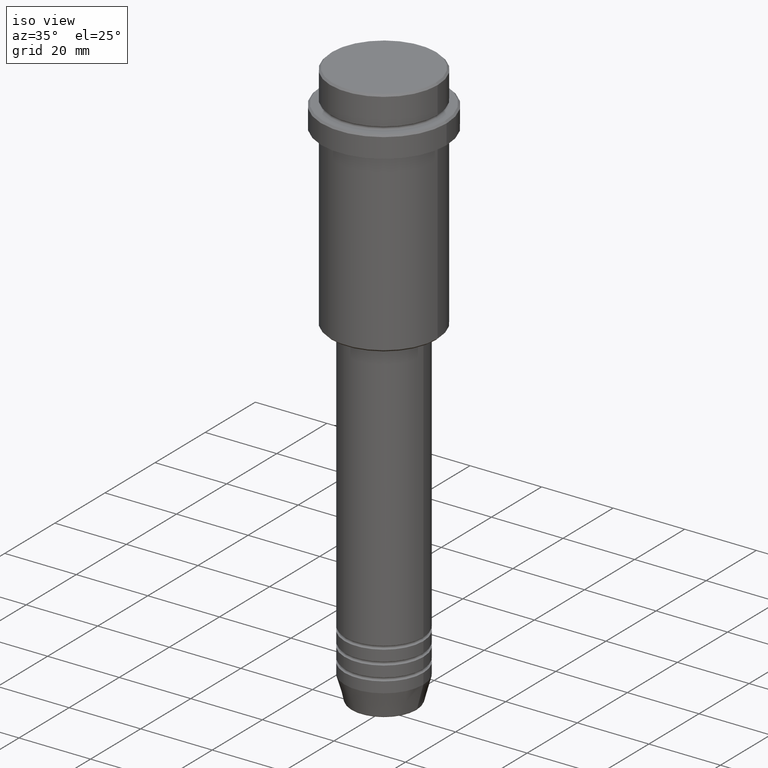
[diagram: clean part render]
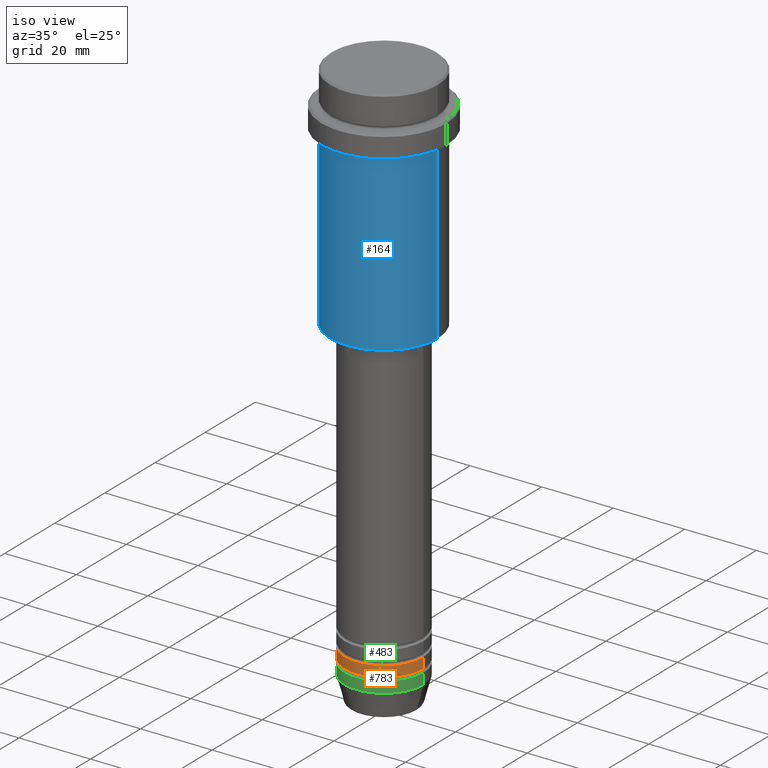
[diagram: same view with three faces highlighted in distinct colors, each labeled with its STEP entity id]
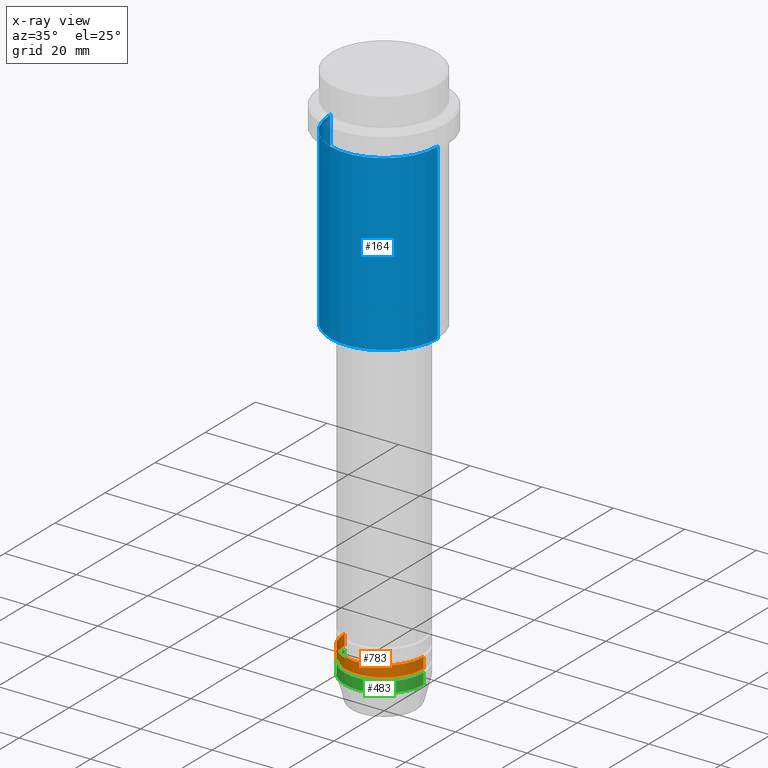
[diagram: x-ray of the same camera — body ghosted, the three highlighted faces saturated]
A machine part, iso view with three faces highlighted in distinct colors.
The next image is the same camera in x-ray (body ghosted, the three faces saturated) — at least one of them is partly hidden behind the body in this view.
Their STEP definitions:

[orange] entity #783 — the highlighted cylindrical surface (partial cylindrical patch) has radius 11 mm, axis along (-0, -0, 1).
#11 = VECTOR ( 'NONE', #760, 1000.000000000000000 ) ;
#33 = AXIS2_PLACEMENT_3D ( 'NONE', #1032, #47, #489 ) ;
#47 = DIRECTION ( 'NONE',  ( -0.000000000000000000, -0.000000000000000000, 1.000000000000000000 ) ) ;
#73 = LINE ( 'NONE', #871, #11 ) ;
#116 = DIRECTION ( 'NONE',  ( -0.000000000000000000, -0.000000000000000000, 1.000000000000000000 ) ) ;
#147 = CARTESIAN_POINT ( 'NONE',  ( -11.00000000000000000, 1.347111479062088405E-15, -148.9999999999999147 ) ) ;
#166 = ORIENTED_EDGE ( 'NONE', *, *, #510, .F. ) ;
#197 = ORIENTED_EDGE ( 'NONE', *, *, #433, .T. ) ;
#233 = DIRECTION ( 'NONE',  ( -0.000000000000000000, -0.000000000000000000, 1.000000000000000000 ) ) ;
#287 = ORIENTED_EDGE ( 'NONE', *, *, #1113, .T. ) ;
#289 = CIRCLE ( 'NONE', #768, 11.00000000000000000 ) ;
#401 = VERTEX_POINT ( 'NONE', #1377 ) ;
#433 = EDGE_CURVE ( 'NONE', #688, #401, #463, .T. ) ;
#463 = LINE ( 'NONE', #896, #721 ) ;
#489 = DIRECTION ( 'NONE',  ( 1.000000000000000000, 0.000000000000000000, 0.000000000000000000 ) ) ;
#510 = EDGE_CURVE ( 'NONE', #1330, #401, #289, .T. ) ;
#521 = AXIS2_PLACEMENT_3D ( 'NONE', #568, #233, #895 ) ;
#568 = CARTESIAN_POINT ( 'NONE',  ( 0.000000000000000000, 0.000000000000000000, -148.9999999999999147 ) ) ;
#579 = DIRECTION ( 'NONE',  ( -0.000000000000000000, -0.000000000000000000, 1.000000000000000000 ) ) ;
#588 = CYLINDRICAL_SURFACE ( 'NONE', #33, 11.00000000000000000 ) ;
#644 = EDGE_CURVE ( 'NONE', #1136, #1330, #73, .T. ) ;
#688 = VERTEX_POINT ( 'NONE', #1016 ) ;
#721 = VECTOR ( 'NONE', #116, 1000.000000000000000 ) ;
#760 = DIRECTION ( 'NONE',  ( -0.000000000000000000, -0.000000000000000000, 1.000000000000000000 ) ) ;
#768 = AXIS2_PLACEMENT_3D ( 'NONE', #1331, #579, #996 ) ;
#783 = ADVANCED_FACE ( 'NONE', ( #915 ), #588, .T. ) ;
#871 = CARTESIAN_POINT ( 'NONE',  ( -11.00000000000000000, 1.347111479062088405E-15, 0.000000000000000000 ) ) ;
#895 = DIRECTION ( 'NONE',  ( 1.000000000000000000, 0.000000000000000000, 0.000000000000000000 ) ) ;
#896 = CARTESIAN_POINT ( 'NONE',  ( 11.00000000000000000, 0.000000000000000000, 0.000000000000000000 ) ) ;
#915 = FACE_OUTER_BOUND ( 'NONE', #1351, .T. ) ;
#996 = DIRECTION ( 'NONE',  ( 1.000000000000000000, 0.000000000000000000, 0.000000000000000000 ) ) ;
#1016 = CARTESIAN_POINT ( 'NONE',  ( 11.00000000000000000, 0.000000000000000000, -148.9999999999999147 ) ) ;
#1032 = CARTESIAN_POINT ( 'NONE',  ( 0.000000000000000000, 0.000000000000000000, 0.000000000000000000 ) ) ;
#1051 = CIRCLE ( 'NONE', #521, 11.00000000000000000 ) ;
#1108 = ORIENTED_EDGE ( 'NONE', *, *, #644, .F. ) ;
#1113 = EDGE_CURVE ( 'NONE', #1136, #688, #1051, .T. ) ;
#1136 = VERTEX_POINT ( 'NONE', #147 ) ;
#1190 = CARTESIAN_POINT ( 'NONE',  ( -11.00000000000000000, 1.347111479062088405E-15, -145.9999999999999147 ) ) ;
#1330 = VERTEX_POINT ( 'NONE', #1190 ) ;
#1331 = CARTESIAN_POINT ( 'NONE',  ( 0.000000000000000000, 0.000000000000000000, -145.9999999999999147 ) ) ;
#1351 = EDGE_LOOP ( 'NONE', ( #1108, #287, #197, #166 ) ) ;
#1377 = CARTESIAN_POINT ( 'NONE',  ( 11.00000000000000000, 0.000000000000000000, -145.9999999999999147 ) ) ;

[blue] entity #164 — the highlighted cylindrical surface (partial cylindrical patch) has radius 15 mm, axis along (-0, -0, 1).
#29 = LINE ( 'NONE', #338, #699 ) ;
#164 = ADVANCED_FACE ( 'NONE', ( #938 ), #174, .T. ) ;
#173 = ORIENTED_EDGE ( 'NONE', *, *, #181, .T. ) ;
#174 = CYLINDRICAL_SURFACE ( 'NONE', #1024, 15.00000000000000000 ) ;
#181 = EDGE_CURVE ( 'NONE', #212, #241, #979, .T. ) ;
#200 = AXIS2_PLACEMENT_3D ( 'NONE', #309, #364, #1014 ) ;
#212 = VERTEX_POINT ( 'NONE', #283 ) ;
#219 = ORIENTED_EDGE ( 'NONE', *, *, #1165, .F. ) ;
#241 = VERTEX_POINT ( 'NONE', #977 ) ;
#283 = CARTESIAN_POINT ( 'NONE',  ( -15.00000000000000000, 1.836970198721029589E-15, -64.50000000000000000 ) ) ;
#309 = CARTESIAN_POINT ( 'NONE',  ( 0.000000000000000000, 0.000000000000000000, -16.00000000000000000 ) ) ;
#316 = EDGE_CURVE ( 'NONE', #434, #620, #679, .T. ) ;
#338 = CARTESIAN_POINT ( 'NONE',  ( -15.00000000000000000, 1.836970198721029589E-15, 0.000000000000000000 ) ) ;
#364 = DIRECTION ( 'NONE',  ( -0.000000000000000000, -0.000000000000000000, 1.000000000000000000 ) ) ;
#419 = CARTESIAN_POINT ( 'NONE',  ( -15.00000000000000355, 1.836970198721029983E-15, -16.00000000000000000 ) ) ;
#434 = VERTEX_POINT ( 'NONE', #419 ) ;
#460 = ORIENTED_EDGE ( 'NONE', *, *, #1392, .T. ) ;
#471 = DIRECTION ( 'NONE',  ( -0.000000000000000000, -0.000000000000000000, 1.000000000000000000 ) ) ;
#526 = DIRECTION ( 'NONE',  ( -0.000000000000000000, -0.000000000000000000, 1.000000000000000000 ) ) ;
#549 = CARTESIAN_POINT ( 'NONE',  ( 0.000000000000000000, 0.000000000000000000, -64.50000000000000000 ) ) ;
#620 = VERTEX_POINT ( 'NONE', #1396 ) ;
#679 = CIRCLE ( 'NONE', #200, 15.00000000000000178 ) ;
#699 = VECTOR ( 'NONE', #471, 1000.000000000000000 ) ;
#825 = DIRECTION ( 'NONE',  ( 1.000000000000000000, 0.000000000000000000, 0.000000000000000000 ) ) ;
#938 = FACE_OUTER_BOUND ( 'NONE', #1352, .T. ) ;
#977 = CARTESIAN_POINT ( 'NONE',  ( 15.00000000000000000, 0.000000000000000000, -64.50000000000000000 ) ) ;
#979 = CIRCLE ( 'NONE', #1344, 15.00000000000000000 ) ;
#995 = ORIENTED_EDGE ( 'NONE', *, *, #316, .F. ) ;
#1014 = DIRECTION ( 'NONE',  ( 1.000000000000000000, 0.000000000000000000, 0.000000000000000000 ) ) ;
#1024 = AXIS2_PLACEMENT_3D ( 'NONE', #1052, #1369, #825 ) ;
#1052 = CARTESIAN_POINT ( 'NONE',  ( 0.000000000000000000, 0.000000000000000000, 0.000000000000000000 ) ) ;
#1068 = LINE ( 'NONE', #1402, #1300 ) ;
#1165 = EDGE_CURVE ( 'NONE', #212, #434, #29, .T. ) ;
#1300 = VECTOR ( 'NONE', #526, 1000.000000000000000 ) ;
#1344 = AXIS2_PLACEMENT_3D ( 'NONE', #549, #1387, #1395 ) ;
#1352 = EDGE_LOOP ( 'NONE', ( #219, #173, #460, #995 ) ) ;
#1369 = DIRECTION ( 'NONE',  ( -0.000000000000000000, -0.000000000000000000, 1.000000000000000000 ) ) ;
#1387 = DIRECTION ( 'NONE',  ( -0.000000000000000000, -0.000000000000000000, 1.000000000000000000 ) ) ;
#1392 = EDGE_CURVE ( 'NONE', #241, #620, #1068, .T. ) ;
#1395 = DIRECTION ( 'NONE',  ( -1.000000000000000000, 0.000000000000000000, 0.000000000000000000 ) ) ;
#1396 = CARTESIAN_POINT ( 'NONE',  ( 15.00000000000000178, 0.000000000000000000, -16.00000000000000000 ) ) ;
#1402 = CARTESIAN_POINT ( 'NONE',  ( 15.00000000000000000, 0.000000000000000000, 0.000000000000000000 ) ) ;

[green] entity #483 — the highlighted cylindrical surface (partial cylindrical patch) has radius 11 mm, axis along (-0, -0, 1).
#18 = CYLINDRICAL_SURFACE ( 'NONE', #317, 11.00000000000000000 ) ;
#78 = CARTESIAN_POINT ( 'NONE',  ( -11.00000000000000000, 1.347111479062088405E-15, -150.0000000000000000 ) ) ;
#80 = CARTESIAN_POINT ( 'NONE',  ( 11.00000000000000000, 0.000000000000000000, 0.000000000000000000 ) ) ;
#102 = ORIENTED_EDGE ( 'NONE', *, *, #864, .T. ) ;
#209 = DIRECTION ( 'NONE',  ( -0.000000000000000000, -0.000000000000000000, 1.000000000000000000 ) ) ;
#223 = LINE ( 'NONE', #80, #519 ) ;
#274 = EDGE_CURVE ( 'NONE', #1394, #308, #432, .T. ) ;
#308 = VERTEX_POINT ( 'NONE', #842 ) ;
#310 = DIRECTION ( 'NONE',  ( -0.000000000000000000, -0.000000000000000000, 1.000000000000000000 ) ) ;
#315 = FACE_OUTER_BOUND ( 'NONE', #926, .T. ) ;
#317 = AXIS2_PLACEMENT_3D ( 'NONE', #1236, #914, #685 ) ;
#329 = ORIENTED_EDGE ( 'NONE', *, *, #274, .F. ) ;
#383 = DIRECTION ( 'NONE',  ( -0.000000000000000000, -0.000000000000000000, 1.000000000000000000 ) ) ;
#387 = VECTOR ( 'NONE', #383, 1000.000000000000000 ) ;
#432 = CIRCLE ( 'NONE', #1157, 11.00000000000000000 ) ;
#483 = ADVANCED_FACE ( 'NONE', ( #315 ), #18, .T. ) ;
#519 = VECTOR ( 'NONE', #310, 1000.000000000000000 ) ;
#603 = DIRECTION ( 'NONE',  ( -0.000000000000000000, -0.000000000000000000, 1.000000000000000000 ) ) ;
#614 = CARTESIAN_POINT ( 'NONE',  ( 11.00000000000000000, 0.000000000000000000, -153.0000000000000000 ) ) ;
#616 = CIRCLE ( 'NONE', #1409, 11.00000000000000000 ) ;
#633 = DIRECTION ( 'NONE',  ( 1.000000000000000000, 0.000000000000000000, 0.000000000000000000 ) ) ;
#685 = DIRECTION ( 'NONE',  ( 1.000000000000000000, 0.000000000000000000, 0.000000000000000000 ) ) ;
#705 = VERTEX_POINT ( 'NONE', #1246 ) ;
#842 = CARTESIAN_POINT ( 'NONE',  ( 11.00000000000000000, 0.000000000000000000, -150.0000000000000000 ) ) ;
#864 = EDGE_CURVE ( 'NONE', #1320, #308, #223, .T. ) ;
#914 = DIRECTION ( 'NONE',  ( -0.000000000000000000, -0.000000000000000000, 1.000000000000000000 ) ) ;
#925 = DIRECTION ( 'NONE',  ( 1.000000000000000000, 0.000000000000000000, 0.000000000000000000 ) ) ;
#926 = EDGE_LOOP ( 'NONE', ( #1040, #1063, #102, #329 ) ) ;
#1035 = CARTESIAN_POINT ( 'NONE',  ( 0.000000000000000000, 0.000000000000000000, -153.0000000000000000 ) ) ;
#1040 = ORIENTED_EDGE ( 'NONE', *, *, #1293, .F. ) ;
#1055 = LINE ( 'NONE', #1358, #387 ) ;
#1063 = ORIENTED_EDGE ( 'NONE', *, *, #1292, .T. ) ;
#1157 = AXIS2_PLACEMENT_3D ( 'NONE', #1390, #209, #633 ) ;
#1236 = CARTESIAN_POINT ( 'NONE',  ( 0.000000000000000000, 0.000000000000000000, 0.000000000000000000 ) ) ;
#1246 = CARTESIAN_POINT ( 'NONE',  ( -11.00000000000000000, 1.347111479062088405E-15, -153.0000000000000000 ) ) ;
#1292 = EDGE_CURVE ( 'NONE', #705, #1320, #616, .T. ) ;
#1293 = EDGE_CURVE ( 'NONE', #705, #1394, #1055, .T. ) ;
#1320 = VERTEX_POINT ( 'NONE', #614 ) ;
#1358 = CARTESIAN_POINT ( 'NONE',  ( -11.00000000000000000, 1.347111479062088405E-15, 0.000000000000000000 ) ) ;
#1390 = CARTESIAN_POINT ( 'NONE',  ( 0.000000000000000000, 0.000000000000000000, -150.0000000000000000 ) ) ;
#1394 = VERTEX_POINT ( 'NONE', #78 ) ;
#1409 = AXIS2_PLACEMENT_3D ( 'NONE', #1035, #603, #925 ) ;